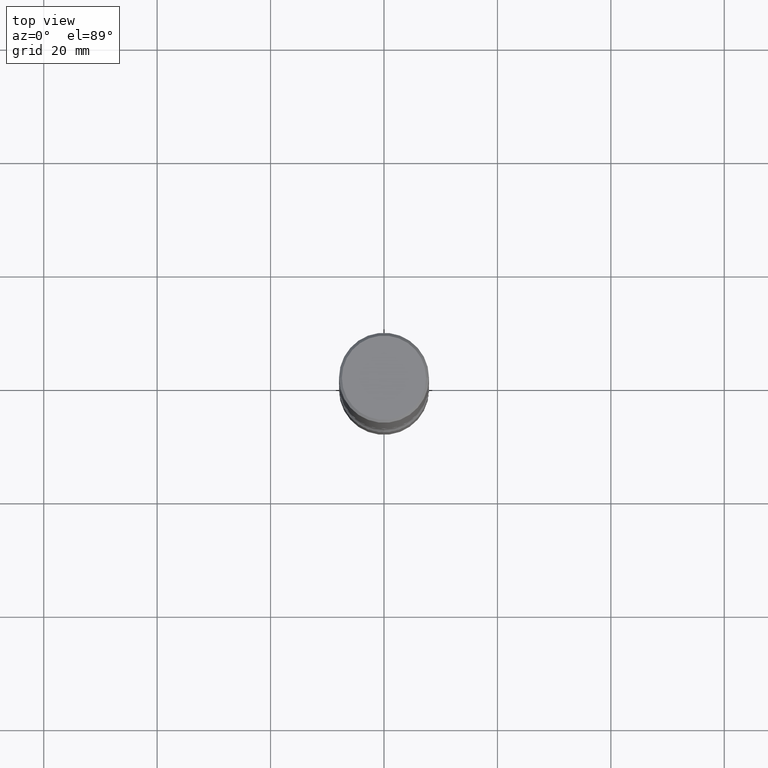
[diagram: clean part render]
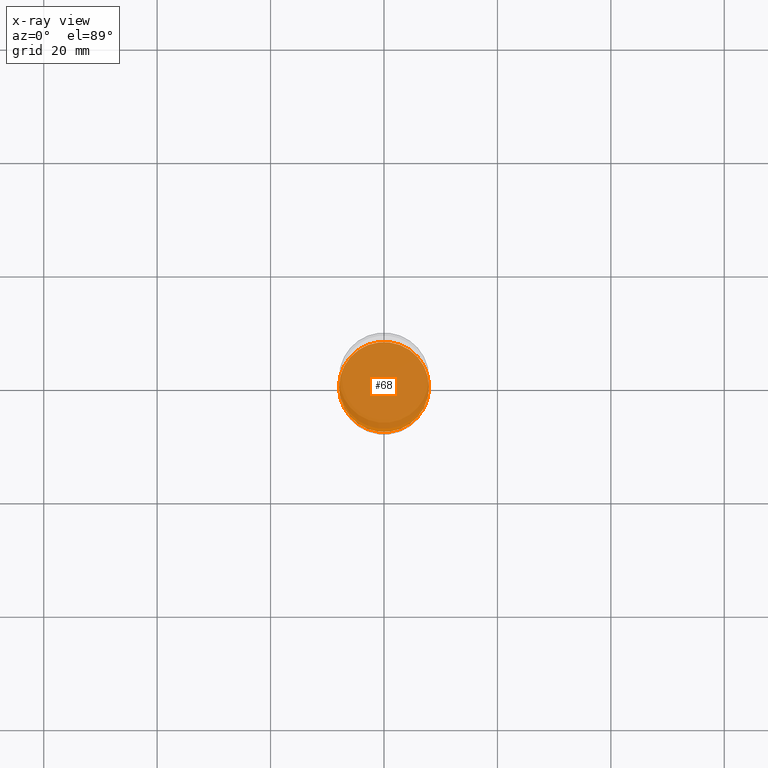
[diagram: x-ray — body ghosted, one internal face saturated and labeled with its STEP entity id]
A machine part, top view, then the same camera in x-ray: the body is ghosted and one INTERNAL B-rep face — a face not visible from any outside direction — is saturated and labeled: STEP entity #68.
In plain terms, the highlighted planar face has unit normal (0, -0, -1).
Its self-contained STEP definition (entity closure, byte-faithful):
#56 = CARTESIAN_POINT ( 'NONE',  ( 9.170508023194261117E-29, -1.309305502066179584E-14, -3.749999999999999556 ) ) ;
#68 = ADVANCED_FACE ( 'NONE', ( #402 ), #460, .F. ) ;
#73 = EDGE_LOOP ( 'NONE', ( #480, #268 ) ) ;
#90 = VERTEX_POINT ( 'NONE', #151 ) ;
#111 = CARTESIAN_POINT ( 'NONE',  ( 9.170508023194261117E-29, -1.309305502066179584E-14, -3.749999999999999556 ) ) ;
#151 = CARTESIAN_POINT ( 'NONE',  ( -0.3125000000000001665, -1.272309408099834754E-14, -3.749999999999999556 ) ) ;
#171 = CIRCLE ( 'NONE', #429, 0.3125000000000001665 ) ;
#205 = AXIS2_PLACEMENT_3D ( 'NONE', #56, #231, #372 ) ;
#225 = DIRECTION ( 'NONE',  ( -2.445468806185136597E-29, 3.491481338843145583E-15, 1.000000000000000000 ) ) ;
#231 = DIRECTION ( 'NONE',  ( 2.438088387897960049E-29, -3.491481338843145188E-15, -1.000000000000000000 ) ) ;
#247 = DIRECTION ( 'NONE',  ( -2.445468806185136597E-29, 3.491481338843145583E-15, 1.000000000000000000 ) ) ;
#268 = ORIENTED_EDGE ( 'NONE', *, *, #456, .T. ) ;
#274 = DIRECTION ( 'NONE',  ( 1.000000000000000000, -6.982962677686265133E-15, 0.000000000000000000 ) ) ;
#304 = CIRCLE ( 'NONE', #314, 0.3125000000000001665 ) ;
#314 = AXIS2_PLACEMENT_3D ( 'NONE', #111, #247, #343 ) ;
#343 = DIRECTION ( 'NONE',  ( 1.000000000000000000, -6.982962677686265133E-15, 0.000000000000000000 ) ) ;
#372 = DIRECTION ( 'NONE',  ( -1.000000000000000000, 6.982962677686265922E-15, -4.876176775795935793E-29 ) ) ;
#402 = FACE_OUTER_BOUND ( 'NONE', #73, .T. ) ;
#419 = CARTESIAN_POINT ( 'NONE',  ( 0.3125000000000001665, -1.527523085743875418E-14, -3.749999999999999556 ) ) ;
#429 = AXIS2_PLACEMENT_3D ( 'NONE', #455, #225, #274 ) ;
#446 = VERTEX_POINT ( 'NONE', #419 ) ;
#455 = CARTESIAN_POINT ( 'NONE',  ( 9.170508023194261117E-29, -1.309305502066179584E-14, -3.749999999999999556 ) ) ;
#456 = EDGE_CURVE ( 'NONE', #90, #446, #171, .T. ) ;
#460 = PLANE ( 'NONE',  #205 ) ;
#480 = ORIENTED_EDGE ( 'NONE', *, *, #535, .T. ) ;
#535 = EDGE_CURVE ( 'NONE', #446, #90, #304, .T. ) ;